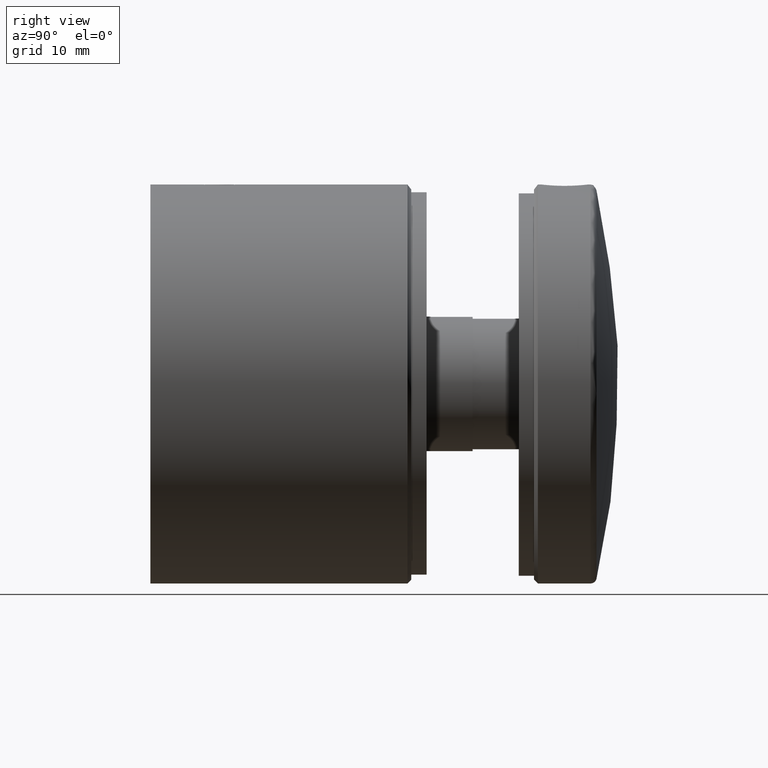
[diagram: clean part render]
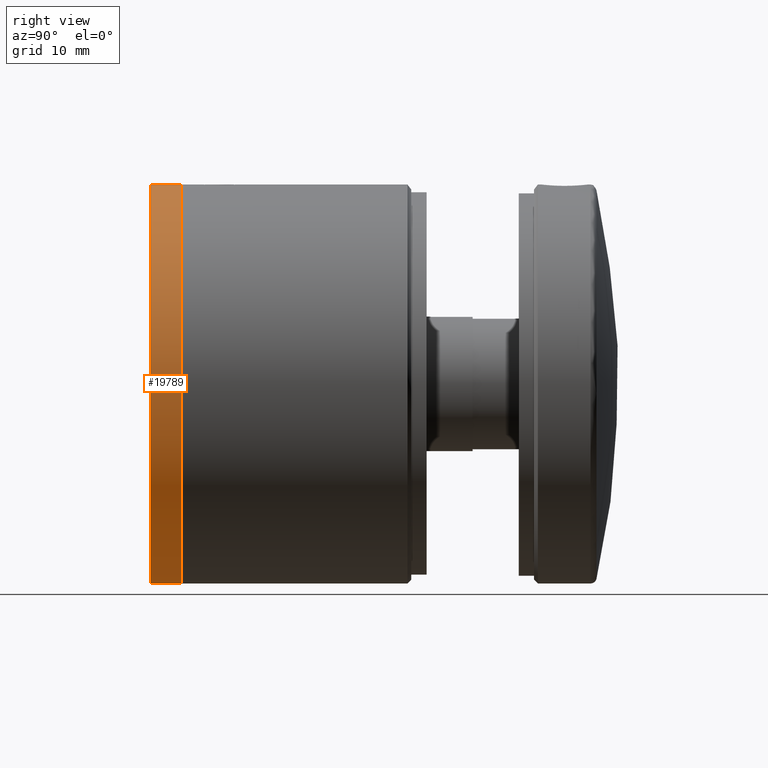
[diagram: same view with one face highlighted and labeled with its STEP entity id]
A machine part, right view. The second image highlights one B-rep face of the part: STEP entity #19789.
In plain terms, the highlighted cylindrical surface (bore or boss wall) has radius 26 mm, axis along (-0, -1, -0).
Its self-contained STEP definition (entity closure, byte-faithful):
#138 = ORIENTED_EDGE ( 'NONE', *, *, #10548, .F. ) ;
#328 = VERTEX_POINT ( 'NONE', #17786 ) ;
#543 = DIRECTION ( 'NONE',  ( 0.0000000000000000000, 0.0000000000000000000, -1.000000000000000000 ) ) ;
#1913 = AXIS2_PLACEMENT_3D ( 'NONE', #12337, #17608, #15731 ) ;
#2128 = CARTESIAN_POINT ( 'NONE',  ( 0.0000000000000000000, 4.000000000000000000, 0.0000000000000000000 ) ) ;
#2900 = CIRCLE ( 'NONE', #12766, 25.99999999999999600 ) ;
#3725 = DIRECTION ( 'NONE',  ( 0.0000000000000000000, 1.000000000000000000, 0.0000000000000000000 ) ) ;
#5432 = EDGE_LOOP ( 'NONE', ( #138 ) ) ;
#6456 = AXIS2_PLACEMENT_3D ( 'NONE', #2128, #16004, #543 ) ;
#7337 = ORIENTED_EDGE ( 'NONE', *, *, #11456, .T. ) ;
#9271 = CARTESIAN_POINT ( 'NONE',  ( 0.0000000000000000000, 4.000000000000000000, 25.99999999999999600 ) ) ;
#10548 = EDGE_CURVE ( 'NONE', #21663, #21663, #21020, .T. ) ;
#10590 = CARTESIAN_POINT ( 'NONE',  ( 0.0000000000000000000, 0.0000000000000000000, 0.0000000000000000000 ) ) ;
#10903 = FACE_OUTER_BOUND ( 'NONE', #18452, .T. ) ;
#11456 = EDGE_CURVE ( 'NONE', #328, #328, #2900, .T. ) ;
#12337 = CARTESIAN_POINT ( 'NONE',  ( 0.0000000000000000000, 4.000000000000000000, 0.0000000000000000000 ) ) ;
#12766 = AXIS2_PLACEMENT_3D ( 'NONE', #10590, #3725, #17521 ) ;
#13896 = CYLINDRICAL_SURFACE ( 'NONE', #6456, 25.99999999999999600 ) ;
#15731 = DIRECTION ( 'NONE',  ( 0.0000000000000000000, 0.0000000000000000000, 1.000000000000000000 ) ) ;
#16004 = DIRECTION ( 'NONE',  ( -0.0000000000000000000, -1.000000000000000000, -0.0000000000000000000 ) ) ;
#17521 = DIRECTION ( 'NONE',  ( 0.0000000000000000000, 0.0000000000000000000, 1.000000000000000000 ) ) ;
#17608 = DIRECTION ( 'NONE',  ( 0.0000000000000000000, 1.000000000000000000, 0.0000000000000000000 ) ) ;
#17786 = CARTESIAN_POINT ( 'NONE',  ( 0.0000000000000000000, 0.0000000000000000000, 25.99999999999999600 ) ) ;
#18452 = EDGE_LOOP ( 'NONE', ( #7337 ) ) ;
#19267 = FACE_OUTER_BOUND ( 'NONE', #5432, .T. ) ;
#19789 = ADVANCED_FACE ( 'NONE', ( #19267, #10903 ), #13896, .T. ) ;
#21020 = CIRCLE ( 'NONE', #1913, 25.99999999999999600 ) ;
#21663 = VERTEX_POINT ( 'NONE', #9271 ) ;